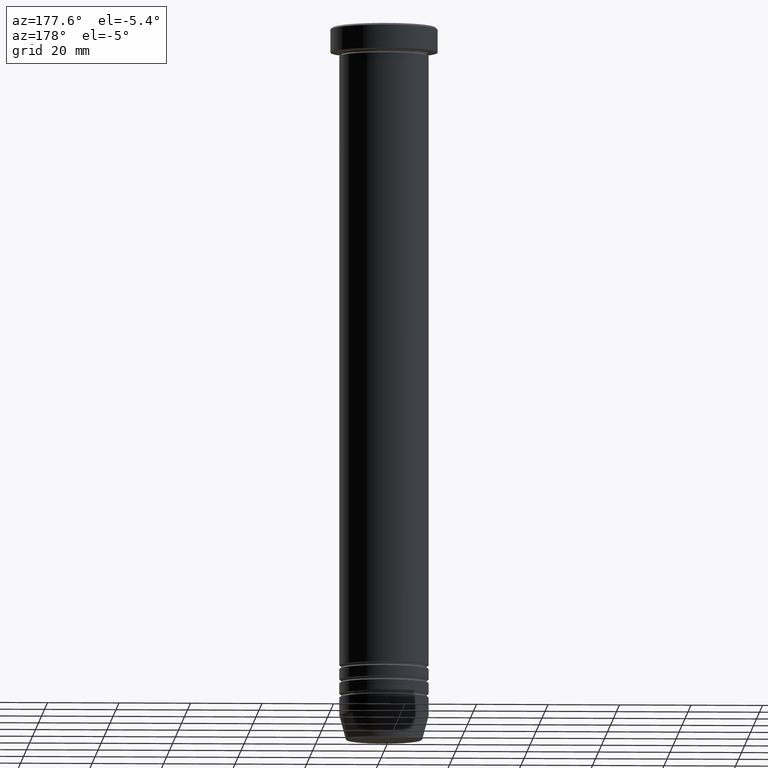
[diagram: clean part render]
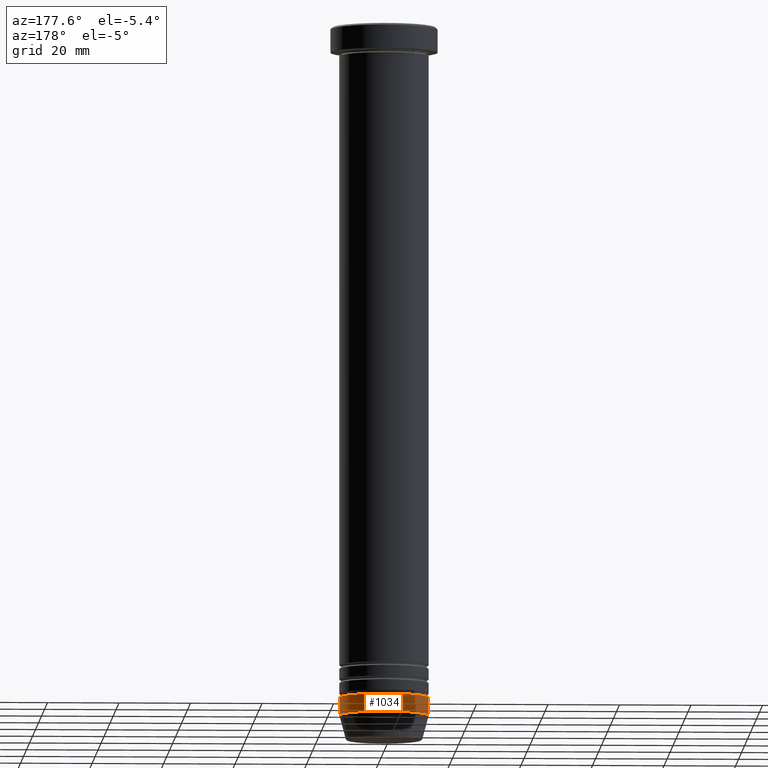
[diagram: same view with one face highlighted and labeled with its STEP entity id]
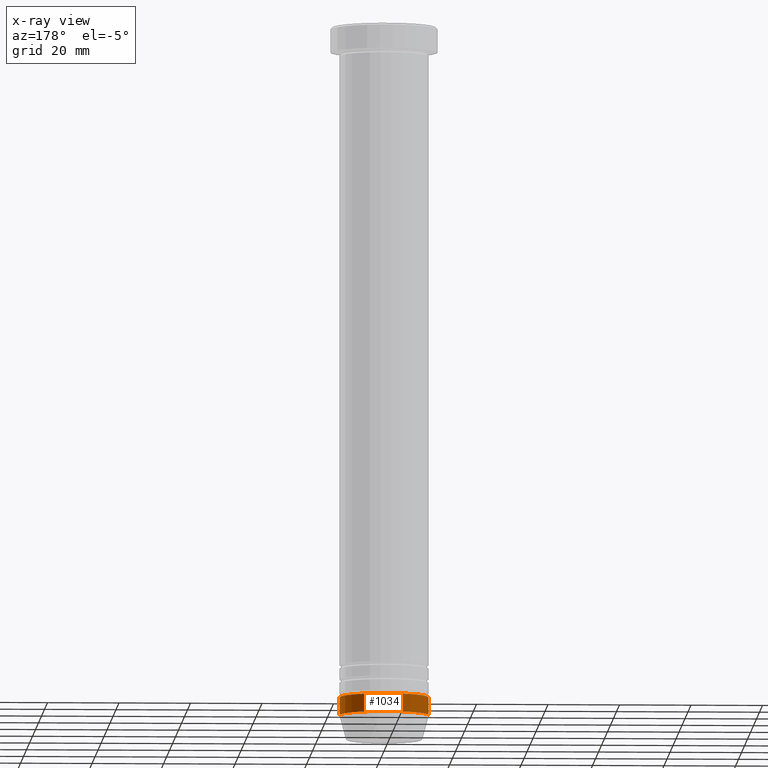
[diagram: x-ray of the same camera — body ghosted, the highlighted face saturated]
A machine part, auxiliary view. The second image highlights one B-rep face of the part: STEP entity #1034.
The next image is the same camera in x-ray: the body ghosted, the highlighted face saturated — about 0% of this face is hidden behind the body in this view.
In plain terms, the highlighted cylindrical surface (partial cylindrical patch) has radius 12.5 mm, axis along (-0, -0, 1).
Its self-contained STEP definition (entity closure, byte-faithful):
#22 = DIRECTION ( 'NONE',  ( -0.000000000000000000, -0.000000000000000000, 1.000000000000000000 ) ) ;
#60 = ORIENTED_EDGE ( 'NONE', *, *, #299, .F. ) ;
#85 = CARTESIAN_POINT ( 'NONE',  ( 0.000000000000000000, 0.000000000000000000, -193.0000000000000000 ) ) ;
#194 = AXIS2_PLACEMENT_3D ( 'NONE', #85, #474, #906 ) ;
#268 = ORIENTED_EDGE ( 'NONE', *, *, #528, .F. ) ;
#299 = EDGE_CURVE ( 'NONE', #848, #769, #1031, .T. ) ;
#310 = CARTESIAN_POINT ( 'NONE',  ( 0.000000000000000000, 0.000000000000000000, 0.000000000000000000 ) ) ;
#318 = CARTESIAN_POINT ( 'NONE',  ( -12.50000000000000000, 1.530808498934191521E-15, -193.0000000000000000 ) ) ;
#332 = FACE_OUTER_BOUND ( 'NONE', #372, .T. ) ;
#346 = DIRECTION ( 'NONE',  ( 1.000000000000000000, 0.000000000000000000, 0.000000000000000000 ) ) ;
#368 = CARTESIAN_POINT ( 'NONE',  ( 12.50000000000000000, 0.000000000000000000, -193.0000000000000000 ) ) ;
#372 = EDGE_LOOP ( 'NONE', ( #731, #1015, #60, #268 ) ) ;
#405 = DIRECTION ( 'NONE',  ( -0.000000000000000000, -0.000000000000000000, 1.000000000000000000 ) ) ;
#474 = DIRECTION ( 'NONE',  ( -0.000000000000000000, -0.000000000000000000, 1.000000000000000000 ) ) ;
#528 = EDGE_CURVE ( 'NONE', #739, #848, #815, .T. ) ;
#534 = CARTESIAN_POINT ( 'NONE',  ( -12.50000000000000000, 1.530808498934191521E-15, -188.0000000000000000 ) ) ;
#544 = VERTEX_POINT ( 'NONE', #318 ) ;
#562 = AXIS2_PLACEMENT_3D ( 'NONE', #750, #22, #346 ) ;
#634 = DIRECTION ( 'NONE',  ( -0.000000000000000000, -0.000000000000000000, 1.000000000000000000 ) ) ;
#639 = LINE ( 'NONE', #718, #788 ) ;
#657 = CYLINDRICAL_SURFACE ( 'NONE', #719, 12.50000000000000000 ) ;
#718 = CARTESIAN_POINT ( 'NONE',  ( -12.50000000000000000, 1.530808498934191521E-15, 0.000000000000000000 ) ) ;
#719 = AXIS2_PLACEMENT_3D ( 'NONE', #310, #634, #972 ) ;
#722 = DIRECTION ( 'NONE',  ( -0.000000000000000000, -0.000000000000000000, 1.000000000000000000 ) ) ;
#731 = ORIENTED_EDGE ( 'NONE', *, *, #944, .T. ) ;
#739 = VERTEX_POINT ( 'NONE', #368 ) ;
#750 = CARTESIAN_POINT ( 'NONE',  ( 0.000000000000000000, 0.000000000000000000, -188.0000000000000000 ) ) ;
#769 = VERTEX_POINT ( 'NONE', #534 ) ;
#788 = VECTOR ( 'NONE', #722, 1000.000000000000000 ) ;
#805 = CARTESIAN_POINT ( 'NONE',  ( 12.50000000000000000, 0.000000000000000000, 0.000000000000000000 ) ) ;
#815 = LINE ( 'NONE', #805, #1001 ) ;
#848 = VERTEX_POINT ( 'NONE', #960 ) ;
#906 = DIRECTION ( 'NONE',  ( 1.000000000000000000, 0.000000000000000000, 0.000000000000000000 ) ) ;
#944 = EDGE_CURVE ( 'NONE', #739, #544, #985, .T. ) ;
#948 = EDGE_CURVE ( 'NONE', #544, #769, #639, .T. ) ;
#960 = CARTESIAN_POINT ( 'NONE',  ( 12.50000000000000000, 0.000000000000000000, -188.0000000000000000 ) ) ;
#972 = DIRECTION ( 'NONE',  ( 1.000000000000000000, 0.000000000000000000, 0.000000000000000000 ) ) ;
#985 = CIRCLE ( 'NONE', #194, 12.50000000000000000 ) ;
#1001 = VECTOR ( 'NONE', #405, 1000.000000000000000 ) ;
#1015 = ORIENTED_EDGE ( 'NONE', *, *, #948, .T. ) ;
#1031 = CIRCLE ( 'NONE', #562, 12.50000000000000000 ) ;
#1034 = ADVANCED_FACE ( 'NONE', ( #332 ), #657, .T. ) ;